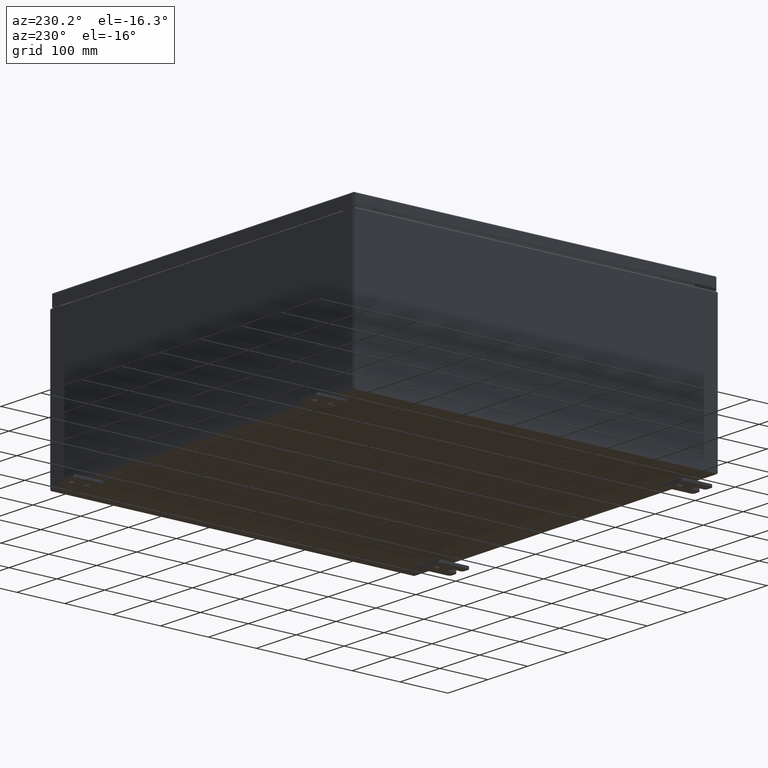
[diagram: clean part render]
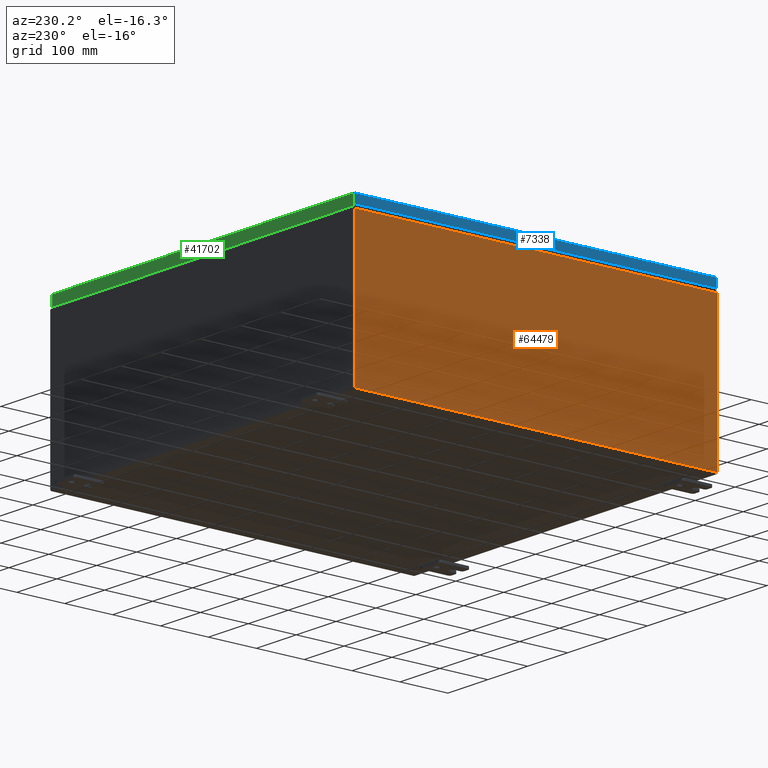
[diagram: same view with three faces highlighted in distinct colors, each labeled with its STEP entity id]
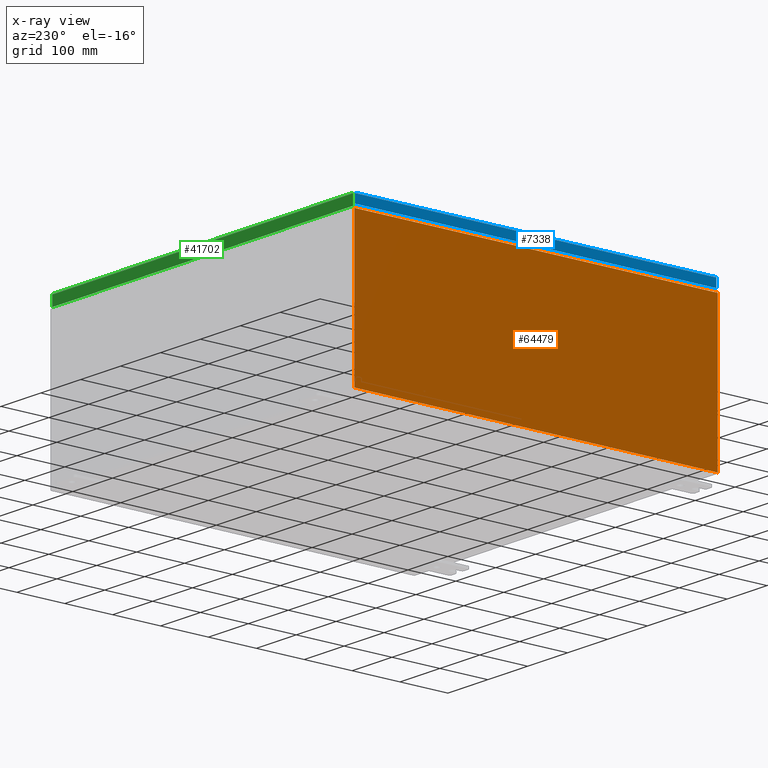
[diagram: x-ray of the same camera — body ghosted, the three highlighted faces saturated]
A machine part, auxiliary view with three faces highlighted in distinct colors.
The next image is the same camera in x-ray (body ghosted, the three faces saturated) — at least one of them is partly hidden behind the body in this view.
Their STEP definitions:

[orange] entity #64479 — the highlighted planar face has unit normal (1, 0, 0).
#605 = EDGE_CURVE ( 'NONE', #41368, #58501, #56567, .T. ) ;
#1127 = LINE ( 'NONE', #49470, #38263 ) ;
#2432 = CARTESIAN_POINT ( 'NONE',  ( -15.00000000000000000, 0.0000000000000000000, -5.249105881172690700E-014 ) ) ;
#4356 = EDGE_CURVE ( 'NONE', #42667, #58501, #22075, .T. ) ;
#6659 = CARTESIAN_POINT ( 'NONE',  ( -15.00000000000000000, -14.92530000000000000, 0.01299999999999984700 ) ) ;
#7119 = CARTESIAN_POINT ( 'NONE',  ( -15.00000000000004300, -14.92530000000000000, 11.83760000000000000 ) ) ;
#7542 = DIRECTION ( 'NONE',  ( 3.482016343714355100E-015, 0.0000000000000000000, -1.000000000000000000 ) ) ;
#13457 = EDGE_LOOP ( 'NONE', ( #34083, #24386, #25552, #61679 ) ) ;
#13475 = VERTEX_POINT ( 'NONE', #7119 ) ;
#14104 = CARTESIAN_POINT ( 'NONE',  ( -15.00000000000004300, 14.92530000000000000, 11.83760000000000000 ) ) ;
#17997 = FACE_OUTER_BOUND ( 'NONE', #13457, .T. ) ;
#22075 = LINE ( 'NONE', #35640, #33872 ) ;
#24054 = CARTESIAN_POINT ( 'NONE',  ( -15.00000000000000000, -14.92530000000000000, -5.249105881172690700E-014 ) ) ;
#24386 = ORIENTED_EDGE ( 'NONE', *, *, #605, .T. ) ;
#25552 = ORIENTED_EDGE ( 'NONE', *, *, #4356, .F. ) ;
#31165 = EDGE_CURVE ( 'NONE', #42667, #13475, #58902, .T. ) ;
#33872 = VECTOR ( 'NONE', #40074, 39.37007874015748100 ) ;
#34083 = ORIENTED_EDGE ( 'NONE', *, *, #42950, .T. ) ;
#34165 = DIRECTION ( 'NONE',  ( 0.0000000000000000000, 1.000000000000000000, 0.0000000000000000000 ) ) ;
#34401 = AXIS2_PLACEMENT_3D ( 'NONE', #2432, #37794, #7542 ) ;
#35640 = CARTESIAN_POINT ( 'NONE',  ( -15.00000000000000000, 14.92530000000000000, 0.01299999999999984700 ) ) ;
#37794 = DIRECTION ( 'NONE',  ( 1.000000000000000000, 0.0000000000000000000, 3.482016343714355100E-015 ) ) ;
#38263 = VECTOR ( 'NONE', #34165, 39.37007874015748100 ) ;
#40074 = DIRECTION ( 'NONE',  ( -0.0000000000000000000, 1.000000000000000000, -0.0000000000000000000 ) ) ;
#41368 = VERTEX_POINT ( 'NONE', #14104 ) ;
#42667 = VERTEX_POINT ( 'NONE', #6659 ) ;
#42950 = EDGE_CURVE ( 'NONE', #13475, #41368, #1127, .T. ) ;
#43018 = VECTOR ( 'NONE', #49477, 39.37007874015748100 ) ;
#45422 = VECTOR ( 'NONE', #49525, 39.37007874015748100 ) ;
#49427 = CARTESIAN_POINT ( 'NONE',  ( -15.00000000000000000, 14.92530000000000000, -5.249105881172690700E-014 ) ) ;
#49470 = CARTESIAN_POINT ( 'NONE',  ( -15.00000000000004300, -14.92530000000000000, 11.83760000000000000 ) ) ;
#49477 = DIRECTION ( 'NONE',  ( 3.482016343714355500E-015, 0.0000000000000000000, -1.000000000000000000 ) ) ;
#49525 = DIRECTION ( 'NONE',  ( -3.482016343714355500E-015, 0.0000000000000000000, 1.000000000000000000 ) ) ;
#56567 = LINE ( 'NONE', #49427, #43018 ) ;
#58501 = VERTEX_POINT ( 'NONE', #61603 ) ;
#58902 = LINE ( 'NONE', #24054, #45422 ) ;
#61603 = CARTESIAN_POINT ( 'NONE',  ( -15.00000000000000000, 14.92530000000000000, 0.01299999999999984700 ) ) ;
#61679 = ORIENTED_EDGE ( 'NONE', *, *, #31165, .T. ) ;
#62917 = PLANE ( 'NONE',  #34401 ) ;
#64479 = ADVANCED_FACE ( 'NONE', ( #17997 ), #62917, .F. ) ;

[blue] entity #7338 — the highlighted planar face has unit normal (1, 0, -0).
#4623 = VERTEX_POINT ( 'NONE', #64252 ) ;
#5244 = CARTESIAN_POINT ( 'NONE',  ( -14.93749999999999800, -14.84865786437626800, -0.07469999999999976700 ) ) ;
#5578 = ORIENTED_EDGE ( 'NONE', *, *, #33406, .F. ) ;
#7338 = ADVANCED_FACE ( 'NONE', ( #52712 ), #15714, .F. ) ;
#8214 = VERTEX_POINT ( 'NONE', #34408 ) ;
#9381 = EDGE_CURVE ( 'NONE', #4623, #22280, #20946, .T. ) ;
#9626 = CARTESIAN_POINT ( 'NONE',  ( -14.93749999999999800, 14.84865786437626900, -0.08770000000000004200 ) ) ;
#13444 = DIRECTION ( 'NONE',  ( -3.034122441942816500E-015, 0.0000000000000000000, -1.000000000000000000 ) ) ;
#13885 = DIRECTION ( 'NONE',  ( 1.000000000000000000, 3.745549041839939100E-031, -3.034122441942816500E-015 ) ) ;
#13911 = AXIS2_PLACEMENT_3D ( 'NONE', #14559, #13885, #13444 ) ;
#14559 = CARTESIAN_POINT ( 'NONE',  ( -14.93749999999999800, -5.594913881248409300E-030, 4.558301763253239600E-014 ) ) ;
#15714 = PLANE ( 'NONE',  #13911 ) ;
#18969 = ORIENTED_EDGE ( 'NONE', *, *, #41986, .F. ) ;
#20946 = LINE ( 'NONE', #50718, #59749 ) ;
#22280 = VERTEX_POINT ( 'NONE', #64971 ) ;
#22326 = LINE ( 'NONE', #24035, #62780 ) ;
#24035 = CARTESIAN_POINT ( 'NONE',  ( -14.93749999999999800, -14.93749999999999800, -0.08770000000000004200 ) ) ;
#26386 = ORIENTED_EDGE ( 'NONE', *, *, #9381, .F. ) ;
#31183 = ORIENTED_EDGE ( 'NONE', *, *, #37363, .T. ) ;
#33406 = EDGE_CURVE ( 'NONE', #56766, #8214, #22326, .T. ) ;
#34408 = CARTESIAN_POINT ( 'NONE',  ( -14.93749999999999800, -14.84865786437626400, -0.08770000000000007000 ) ) ;
#37363 = EDGE_CURVE ( 'NONE', #56766, #22280, #48144, .T. ) ;
#39274 = DIRECTION ( 'NONE',  ( 3.745549041839940000E-031, -1.000000000000000000, -1.104117517615176400E-045 ) ) ;
#39931 = VECTOR ( 'NONE', #50761, 39.37007874015748100 ) ;
#41986 = EDGE_CURVE ( 'NONE', #8214, #4623, #53407, .T. ) ;
#48144 = LINE ( 'NONE', #63012, #60085 ) ;
#50718 = CARTESIAN_POINT ( 'NONE',  ( -14.93750000000000000, -14.93749999999999800, -0.7949999999999997100 ) ) ;
#50761 = DIRECTION ( 'NONE',  ( -3.034122441942816500E-015, 6.982962677686265900E-015, -1.000000000000000000 ) ) ;
#50933 = DIRECTION ( 'NONE',  ( 4.379057701015054300E-047, 1.000000000000000000, 1.234475243998914400E-016 ) ) ;
#52712 = FACE_OUTER_BOUND ( 'NONE', #65760, .T. ) ;
#52949 = DIRECTION ( 'NONE',  ( -3.034122441942816500E-015, 6.982962677686265900E-015, -1.000000000000000000 ) ) ;
#53407 = LINE ( 'NONE', #5244, #39931 ) ;
#56766 = VERTEX_POINT ( 'NONE', #9626 ) ;
#59749 = VECTOR ( 'NONE', #50933, 39.37007874015748100 ) ;
#60085 = VECTOR ( 'NONE', #52949, 39.37007874015748100 ) ;
#62780 = VECTOR ( 'NONE', #39274, 39.37007874015748100 ) ;
#63012 = CARTESIAN_POINT ( 'NONE',  ( -14.93749999999999800, 14.84865786437626900, 1.492706413132045700E-013 ) ) ;
#64252 = CARTESIAN_POINT ( 'NONE',  ( -14.93750000000000000, -14.84865786437626200, -0.7949999999999996000 ) ) ;
#64971 = CARTESIAN_POINT ( 'NONE',  ( -14.93750000000000000, 14.84865786437627300, -0.7949999999999960400 ) ) ;
#65760 = EDGE_LOOP ( 'NONE', ( #5578, #31183, #26386, #18969 ) ) ;

[green] entity #41702 — the highlighted planar face has unit normal (0, -1, -0).
#898 = ORIENTED_EDGE ( 'NONE', *, *, #42109, .F. ) ;
#6323 = DIRECTION ( 'NONE',  ( -0.0000000000000000000, 2.532419924601855400E-015, -1.000000000000000000 ) ) ;
#6738 = DIRECTION ( 'NONE',  ( 3.126209704330587400E-031, -1.000000000000000000, -2.532419924601855400E-015 ) ) ;
#7471 = CARTESIAN_POINT ( 'NONE',  ( -14.84865786437626800, 14.93750000000000200, -0.9377000000000035300 ) ) ;
#7629 = FACE_OUTER_BOUND ( 'NONE', #31079, .T. ) ;
#8633 = AXIS2_PLACEMENT_3D ( 'NONE', #26845, #6738, #42069 ) ;
#11502 = LINE ( 'NONE', #52660, #60590 ) ;
#11556 = ORIENTED_EDGE ( 'NONE', *, *, #13682, .F. ) ;
#12209 = DIRECTION ( 'NONE',  ( -1.000000000000000000, -4.978778418007973200E-031, 7.315408853326900200E-017 ) ) ;
#12771 = VECTOR ( 'NONE', #38774, 39.37007874015748100 ) ;
#13682 = EDGE_CURVE ( 'NONE', #32648, #25585, #53120, .T. ) ;
#16721 = CARTESIAN_POINT ( 'NONE',  ( 14.84865786437626400, 14.93750000000000000, -0.08770000000000226200 ) ) ;
#22327 = ORIENTED_EDGE ( 'NONE', *, *, #63042, .F. ) ;
#23607 = LINE ( 'NONE', #41625, #48942 ) ;
#25407 = LINE ( 'NONE', #29608, #64291 ) ;
#25585 = VERTEX_POINT ( 'NONE', #41690 ) ;
#26845 = CARTESIAN_POINT ( 'NONE',  ( -4.669775745843815100E-030, 14.93750000000000000, 3.808883627975179900E-014 ) ) ;
#29608 = CARTESIAN_POINT ( 'NONE',  ( 14.84865786437626800, 14.93750000000000000, 3.808883627975179900E-014 ) ) ;
#31079 = EDGE_LOOP ( 'NONE', ( #898, #50419, #11556, #22327 ) ) ;
#32648 = VERTEX_POINT ( 'NONE', #7471 ) ;
#36967 = PLANE ( 'NONE',  #8633 ) ;
#37165 = VERTEX_POINT ( 'NONE', #16721 ) ;
#38774 = DIRECTION ( 'NONE',  ( 1.000000000000000000, -4.379057701015054300E-047, 1.234475243998914400E-016 ) ) ;
#39783 = DIRECTION ( 'NONE',  ( 0.0000000000000000000, 2.532419924601855400E-015, -1.000000000000000000 ) ) ;
#41625 = CARTESIAN_POINT ( 'NONE',  ( -14.84865786437626800, 14.93750000000000000, -0.07469999999999980800 ) ) ;
#41690 = CARTESIAN_POINT ( 'NONE',  ( 14.84865786437626400, 14.93750000000000200, -0.9376999999999997600 ) ) ;
#41702 = ADVANCED_FACE ( 'NONE', ( #7629 ), #36967, .F. ) ;
#42069 = DIRECTION ( 'NONE',  ( 0.0000000000000000000, 2.532419924601855400E-015, -1.000000000000000000 ) ) ;
#42109 = EDGE_CURVE ( 'NONE', #37165, #43342, #11502, .T. ) ;
#43342 = VERTEX_POINT ( 'NONE', #47429 ) ;
#43869 = CARTESIAN_POINT ( 'NONE',  ( -14.93749999999999800, 14.93750000000000200, -0.9377000000000035300 ) ) ;
#47429 = CARTESIAN_POINT ( 'NONE',  ( -14.84865786437626400, 14.93750000000000000, -0.08770000000000118000 ) ) ;
#48942 = VECTOR ( 'NONE', #6323, 39.37007874015748100 ) ;
#50419 = ORIENTED_EDGE ( 'NONE', *, *, #58891, .T. ) ;
#52660 = CARTESIAN_POINT ( 'NONE',  ( -14.93749999999999800, 14.93750000000000000, -0.08770000000000008300 ) ) ;
#53120 = LINE ( 'NONE', #43869, #12771 ) ;
#58891 = EDGE_CURVE ( 'NONE', #37165, #25585, #25407, .T. ) ;
#60590 = VECTOR ( 'NONE', #12209, 39.37007874015748100 ) ;
#63042 = EDGE_CURVE ( 'NONE', #43342, #32648, #23607, .T. ) ;
#64291 = VECTOR ( 'NONE', #39783, 39.37007874015748100 ) ;